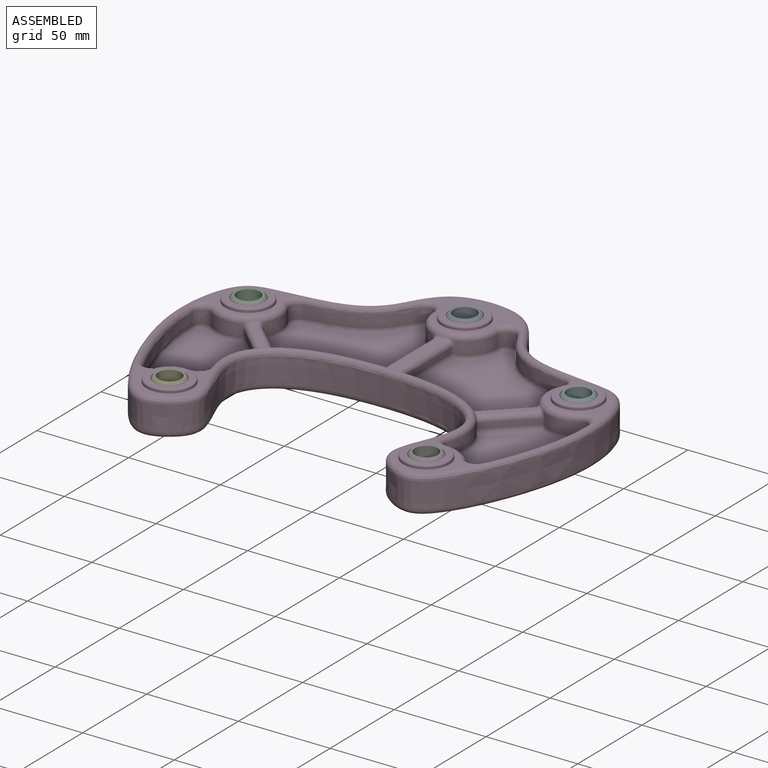
[diagram: assembled view]
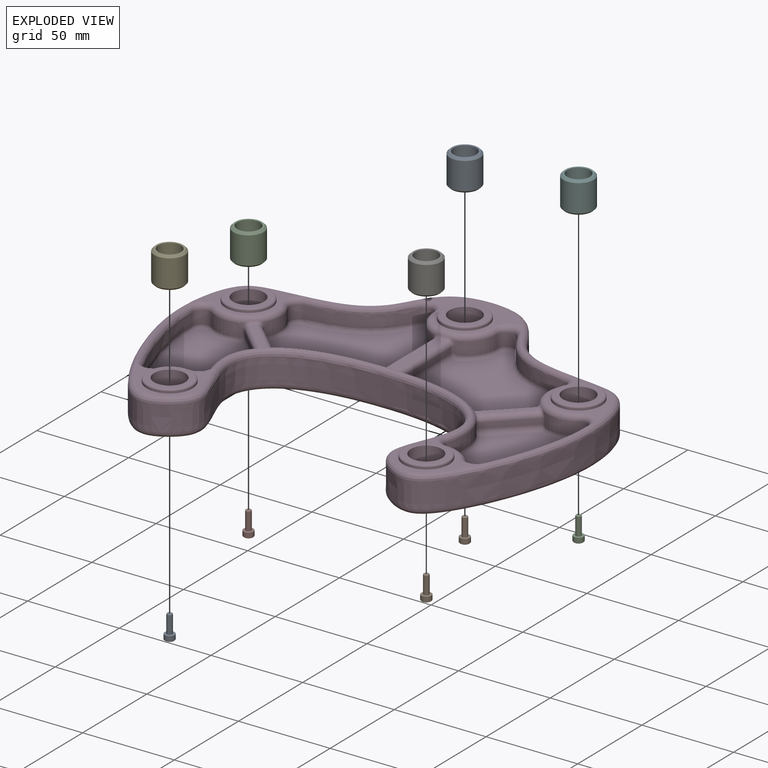
[diagram: exploded view]
GUIDED TOUR — MATED ASSEMBLY (Onshape document 522ba1e49c45aa98ccbdb8b2, AutoMate assembly 522ba1e49c45aa98ccbdb8b2_e6d9994796cce20349b356db_2e51bfdb84ef5d611ce40678_default)

This assembly has 11 components, labeled P0..P10 below (a component is one placed occurrence of a part; the same part can appear more than once), held together by 10 mates. A mate is a constraint between two components; its type names the relative motion it leaves free:
  FASTENED — locks the two components together rigidly (no relative motion).
Axis/direction vectors are unit vectors and 'through' points are millimeter coordinates, both in the assembly's world frame.

MATES
  1. FASTENED "Fastened 8": P1 <-> P3, direction (0.000, 0.000, 1.000) through (100.57, 125.55, -129.96) mm
  2. FASTENED "Fastened 3": P0 <-> P3, direction (0.000, 0.000, -1.000) through (100.57, 125.55, -127.96) mm
  3. FASTENED "Fastened 9": P2 <-> P3, direction (0.000, 0.000, 1.000) through (190.57, 85.55, -129.96) mm
  4. FASTENED "Fastened 4": P5 <-> P3, direction (0.000, 0.000, -1.000) through (190.57, 85.55, -127.96) mm
  5. FASTENED "Fastened 5": P6 <-> P3, direction (0.000, 0.000, -1.000) through (170.57, -4.45, -127.96) mm
  6. FASTENED "Fastened 2": P10 <-> P3, direction (0.000, 0.000, -1.000) through (10.57, 85.55, -127.96) mm
  7. FASTENED "Fastened 1": P4 <-> P3, direction (0.000, 0.000, -1.000) through (30.57, -4.45, -127.96) mm
  8. FASTENED "Fastened 7": P7 <-> P3, direction (0.000, 0.000, 1.000) through (10.57, 85.55, -129.96) mm
  9. FASTENED "Fastened 6": P8 <-> P3, direction (0.000, 0.000, 1.000) through (30.57, -4.45, -129.96) mm
  10. FASTENED "Fastened 10": P9 <-> P3, direction (0.000, 0.000, 1.000) through (170.57, -4.45, -129.96) mm

ASSEMBLY ORDER
  1. P3 — the base component [order verified]
  2. P4 [order verified]
  3. P8 [order verified]
  4. P6 [order verified]
  5. P9 [order verified]
  6. P0 [order verified]
  7. P1 [order verified]
  8. P10 [order verified]
  9. P7 [order verified]
  10. P5 [order verified]
  11. P2 [order verified]
(P8 verified with a relaxed clearance tolerance: the source model stores slight part interference there.)
Order-tag legend:
  [order verified] — this step's position reverses a verified removal order: the component was checked to insert without passing through the ones already placed.

Of the 11 components, 5 carry the full construction recipe — the FeatureScript program that regenerates the part's solid from scratch; the rest are supplied as boundary geometry only.
Each toured component is shown spotlighted twice — in the assembled view, then in the exploded view, where a leader line traces a displaced component back to its assembled socket (saturated green if recipe-attached, orange if geometry-only; every other component desaturated gray) — followed by its recipe or geometry summary and the mates that hold it.
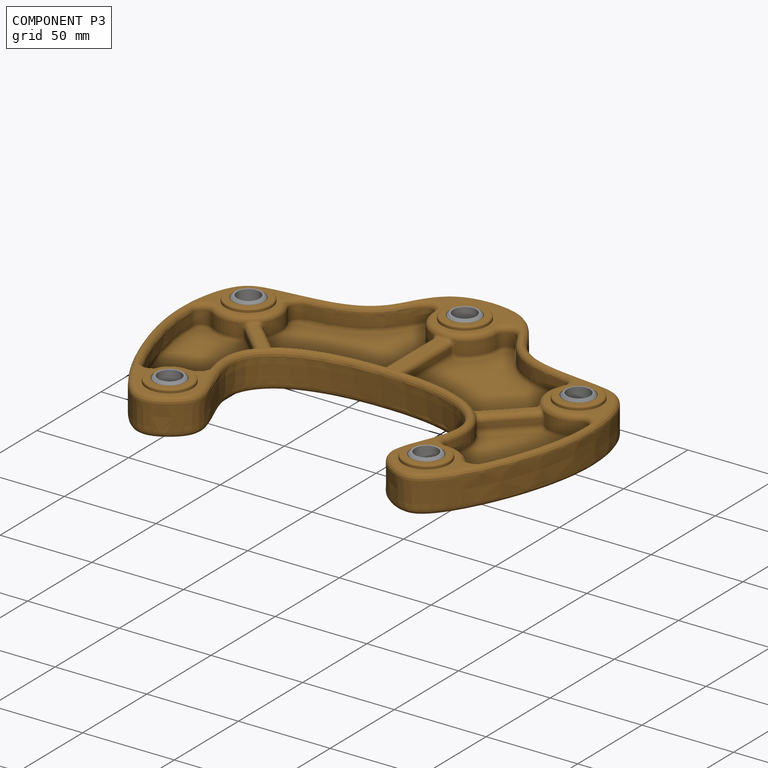
[diagram: component P3 — assembled]
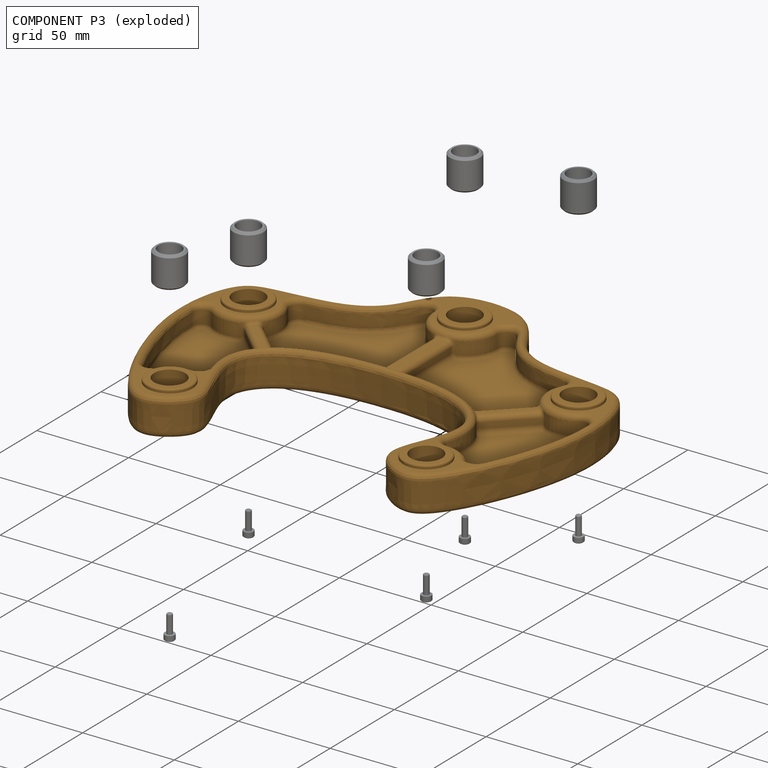
[diagram: component P3 — exploded]
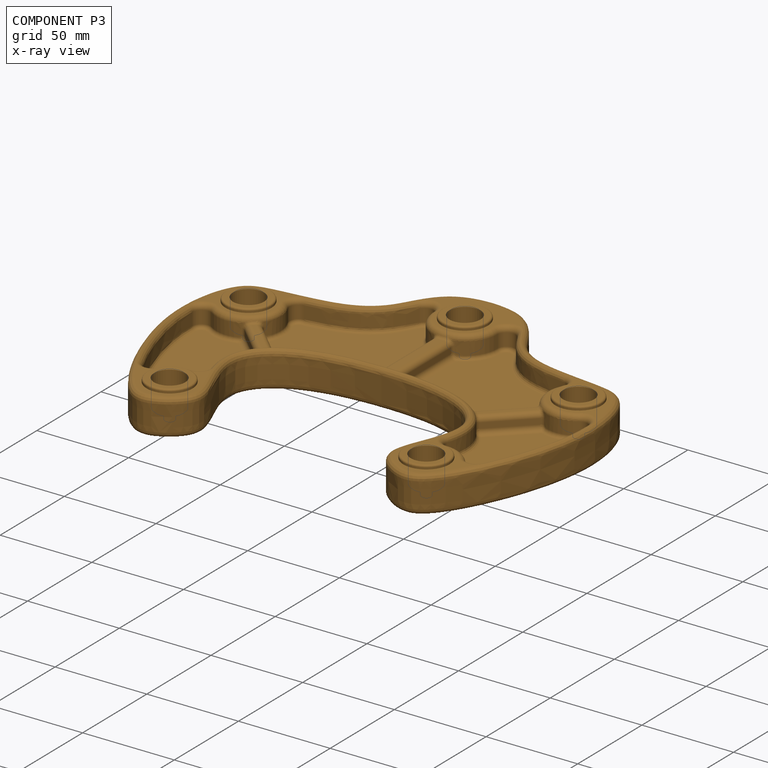
[diagram: component P3 — x-ray view]
COMPONENT P3 — geometry summary (no construction recipe available for this part):
  bounding box: 227.4 x 172.0 x 22.0 mm
  B-rep topology: 1 solid, 202 faces, 900 edges
  volume: 254619 mm^3 (30% of its bounding box)
  symmetry: mirror-symmetric across its x mid-plane
Held by: FASTENED mate "Fastened 8" to P1; FASTENED mate "Fastened 3" to P0; FASTENED mate "Fastened 9" to P2; FASTENED mate "Fastened 4" to P5; FASTENED mate "Fastened 5" to P6; FASTENED mate "Fastened 2" to P10; FASTENED mate "Fastened 1" to P4; FASTENED mate "Fastened 7" to P7; FASTENED mate "Fastened 6" to P8; FASTENED mate "Fastened 10" to P9.
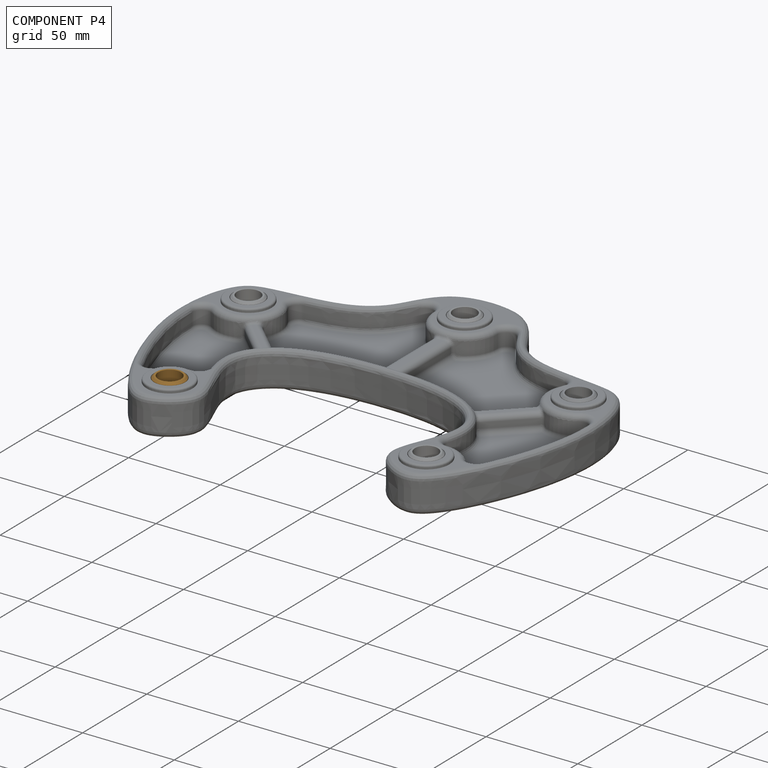
[diagram: component P4 — assembled]
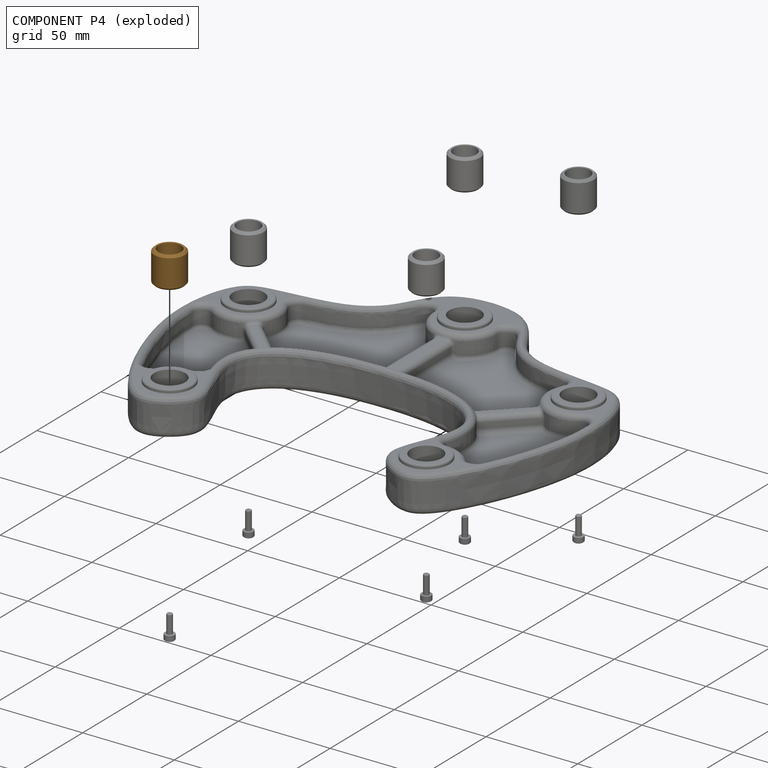
[diagram: component P4 — exploded]
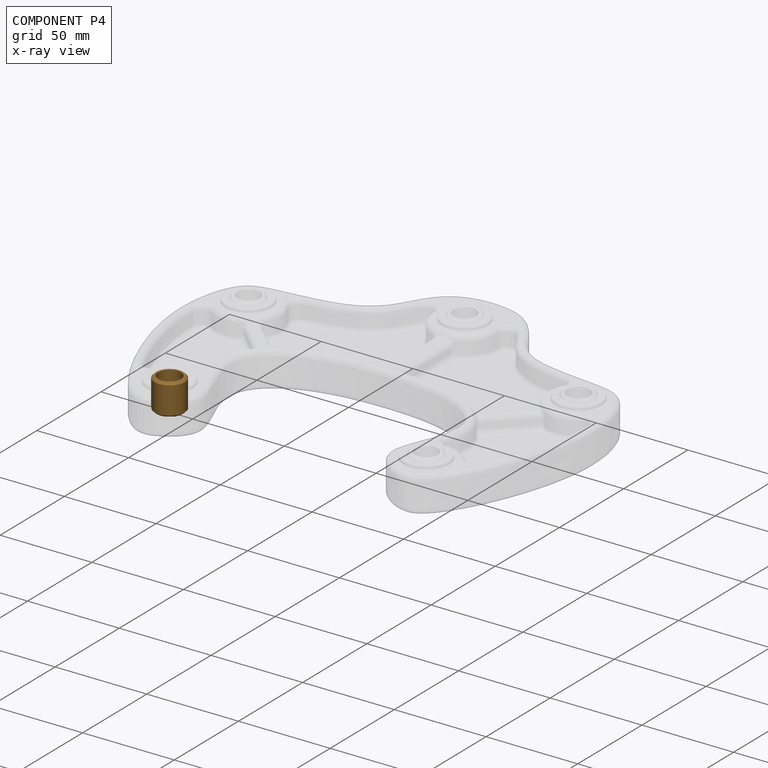
[diagram: component P4 — x-ray view]
COMPONENT P4 — geometry summary (no construction recipe available for this part):
  bounding box: 17.0 x 16.5 x 16.5 mm
  B-rep topology: 1 solid, 16 faces, 68 edges
  volume: 2118 mm^3 (46% of its bounding box)
  symmetry: 6-fold rotationally symmetric about the z axis; mirror-symmetric across its x mid-plane, y mid-plane
Held by: FASTENED mate "Fastened 1" to P3.
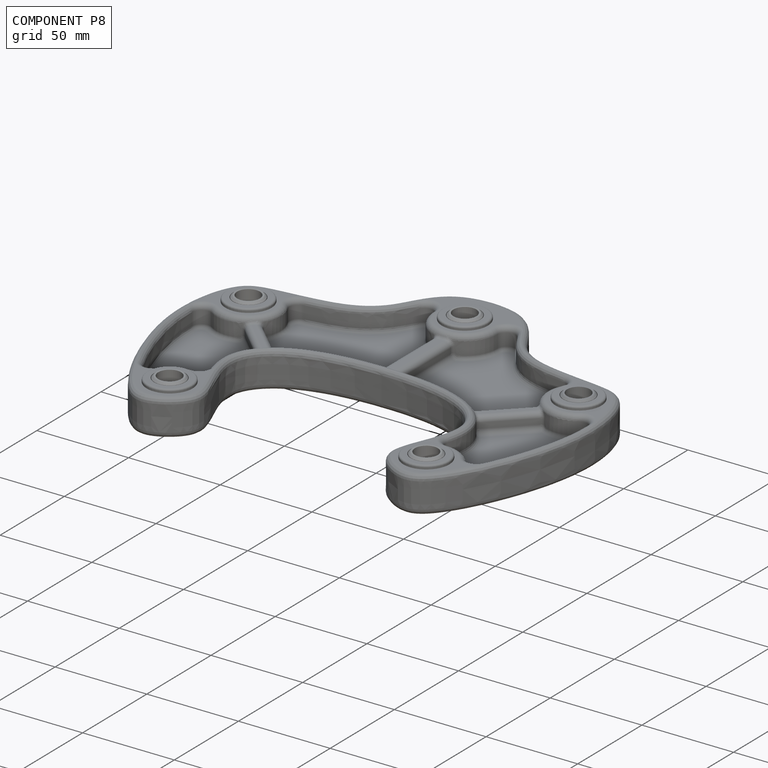
[diagram: component P8 — assembled]
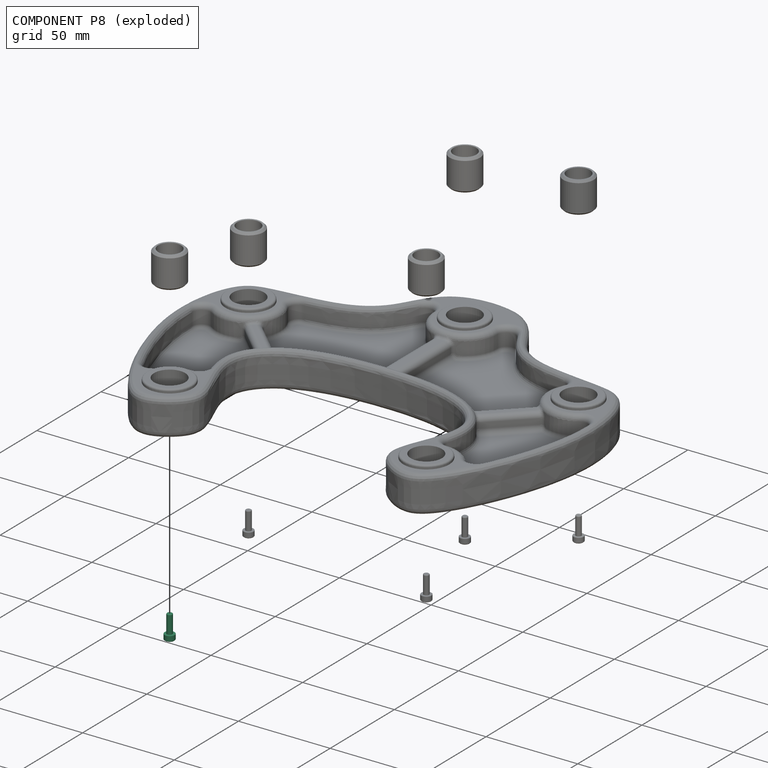
[diagram: component P8 — exploded]
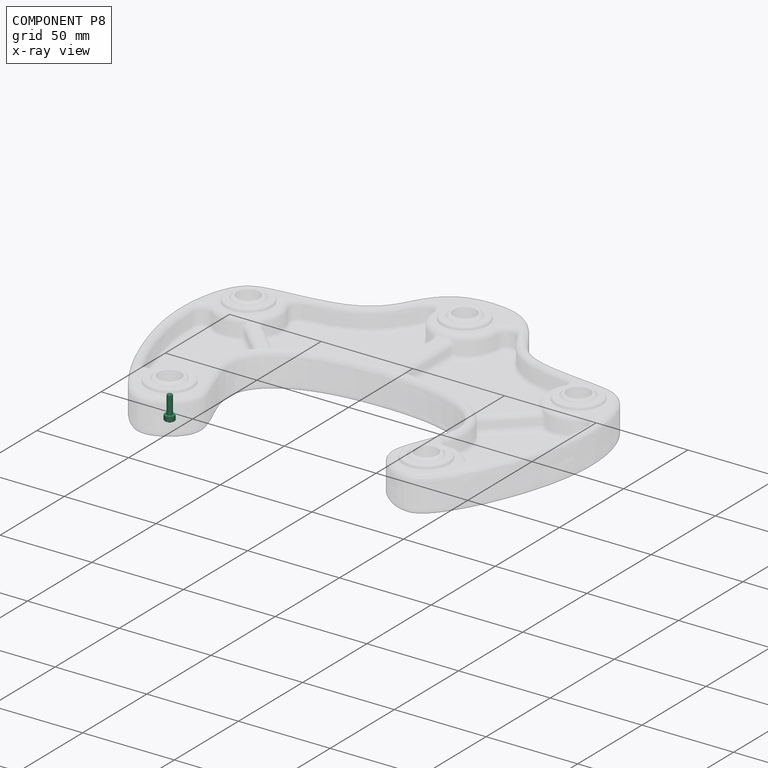
[diagram: component P8 — x-ray view]
COMPONENT P8 — same part as P1 (CADFS 00477910); its construction recipe is shown at P1.
Held by: FASTENED mate "Fastened 6" to P3.
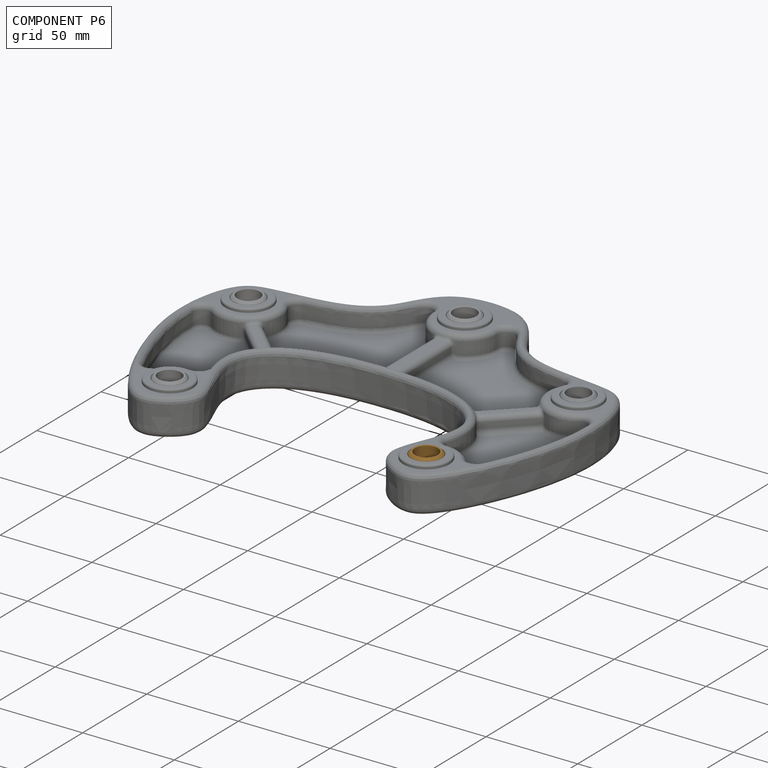
[diagram: component P6 — assembled]
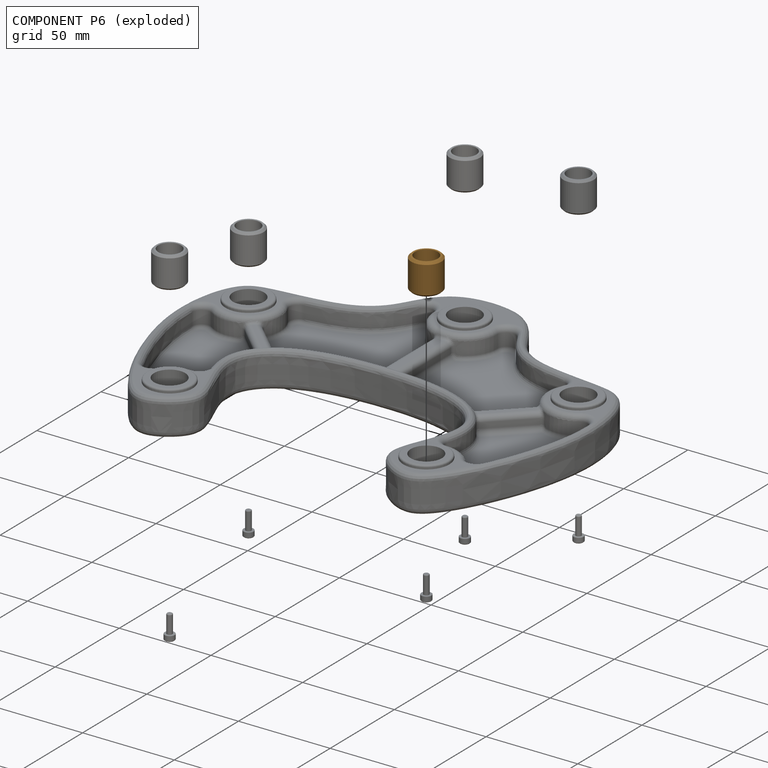
[diagram: component P6 — exploded]
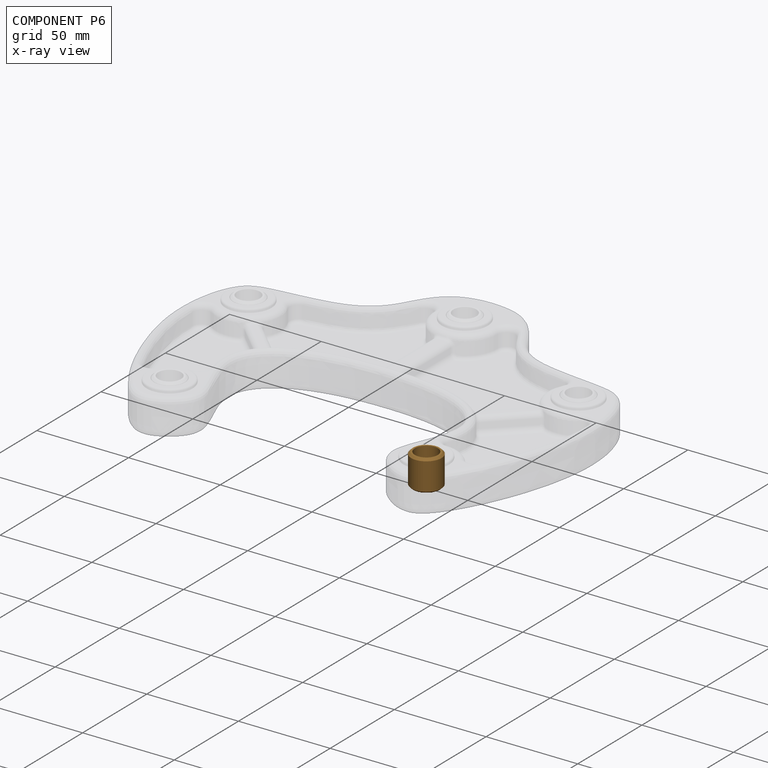
[diagram: component P6 — x-ray view]
COMPONENT P6 — geometry summary (no construction recipe available for this part):
  bounding box: 17.0 x 16.5 x 16.5 mm
  B-rep topology: 1 solid, 16 faces, 68 edges
  volume: 2118 mm^3 (46% of its bounding box)
  symmetry: 6-fold rotationally symmetric about the z axis; mirror-symmetric across its x mid-plane, y mid-plane
Held by: FASTENED mate "Fastened 5" to P3.
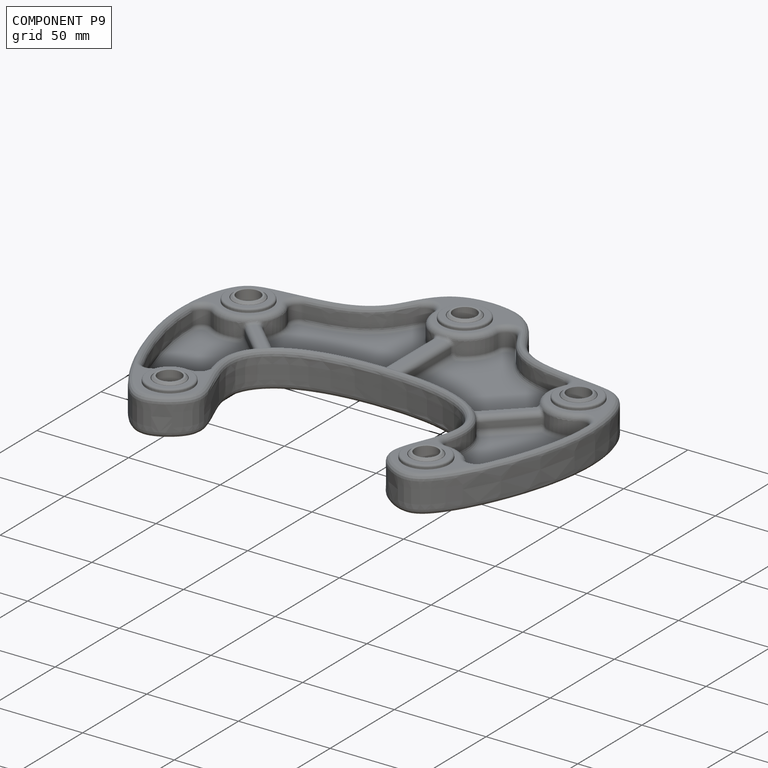
[diagram: component P9 — assembled]
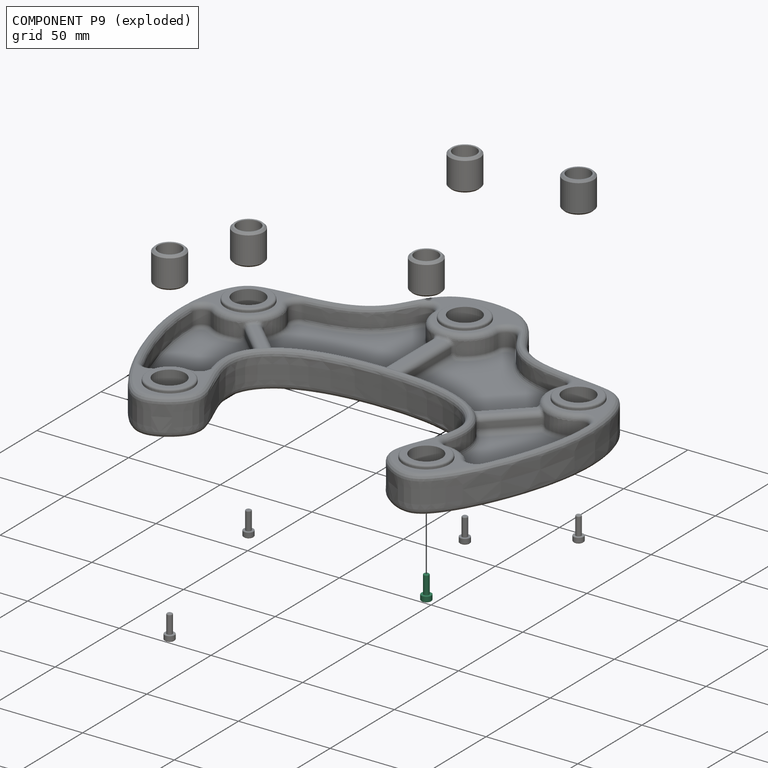
[diagram: component P9 — exploded]
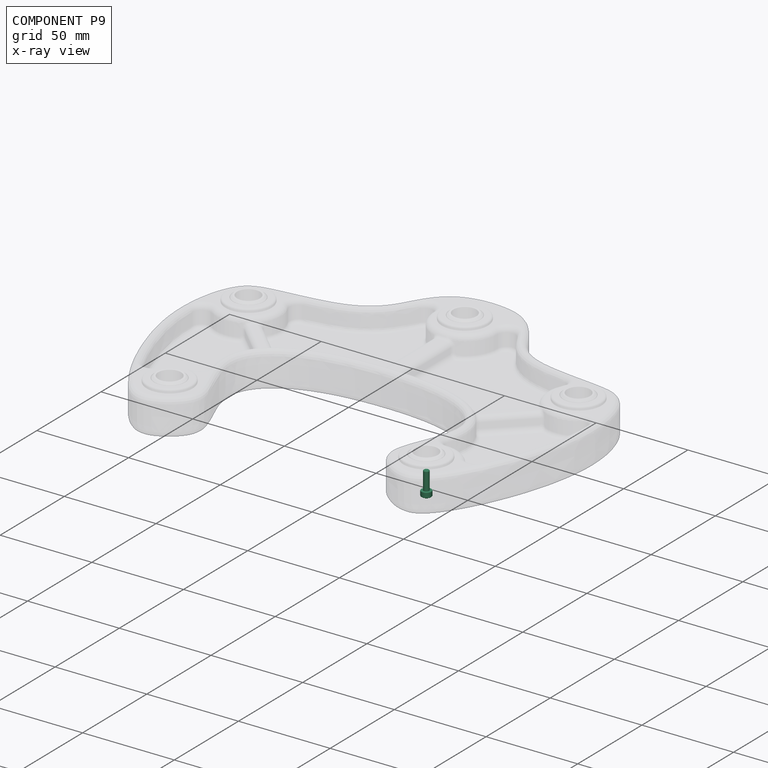
[diagram: component P9 — x-ray view]
COMPONENT P9 — same part as P1 (CADFS 00477910); its construction recipe is shown at P1.
Held by: FASTENED mate "Fastened 10" to P3.
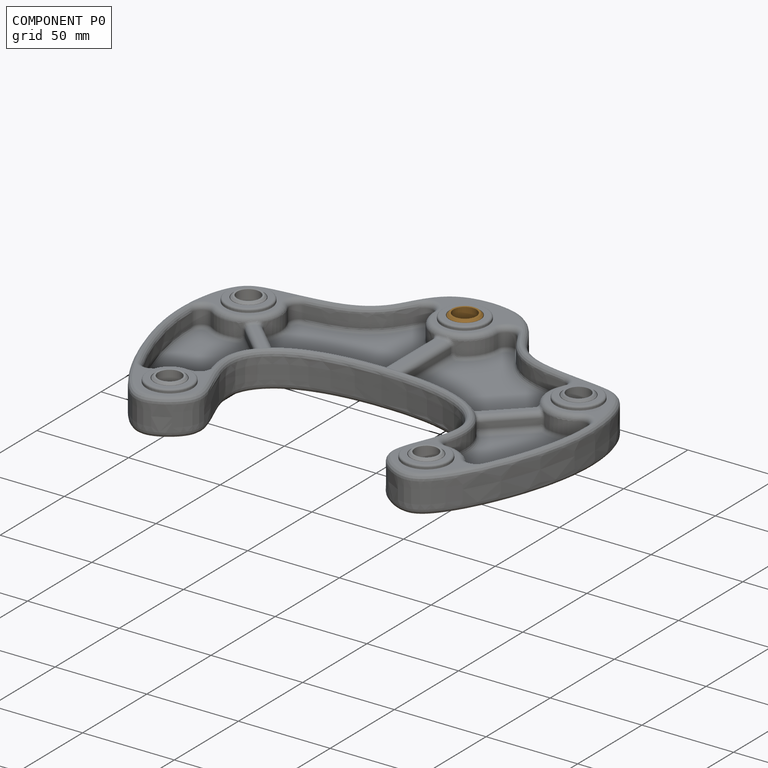
[diagram: component P0 — assembled]
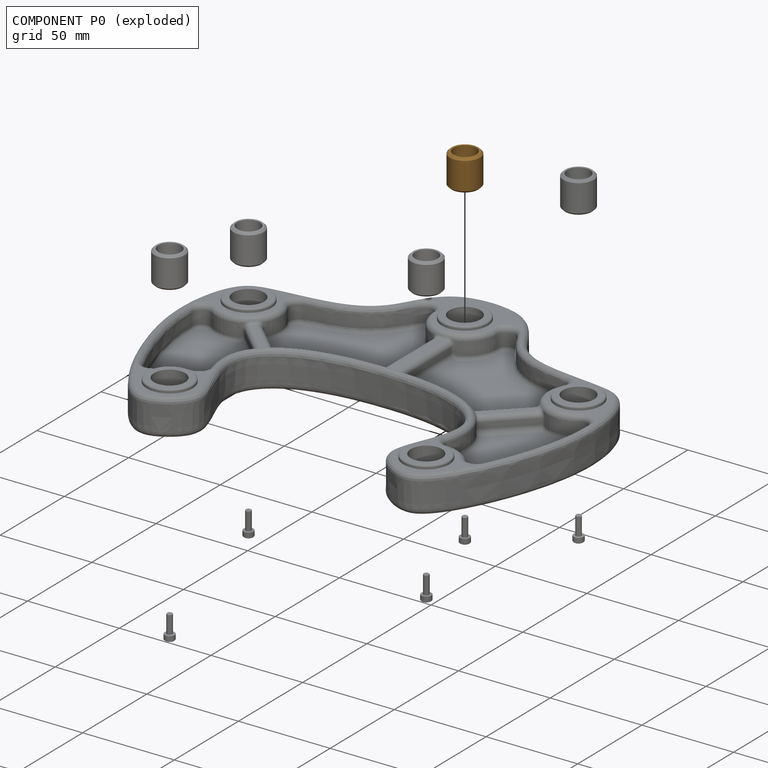
[diagram: component P0 — exploded]
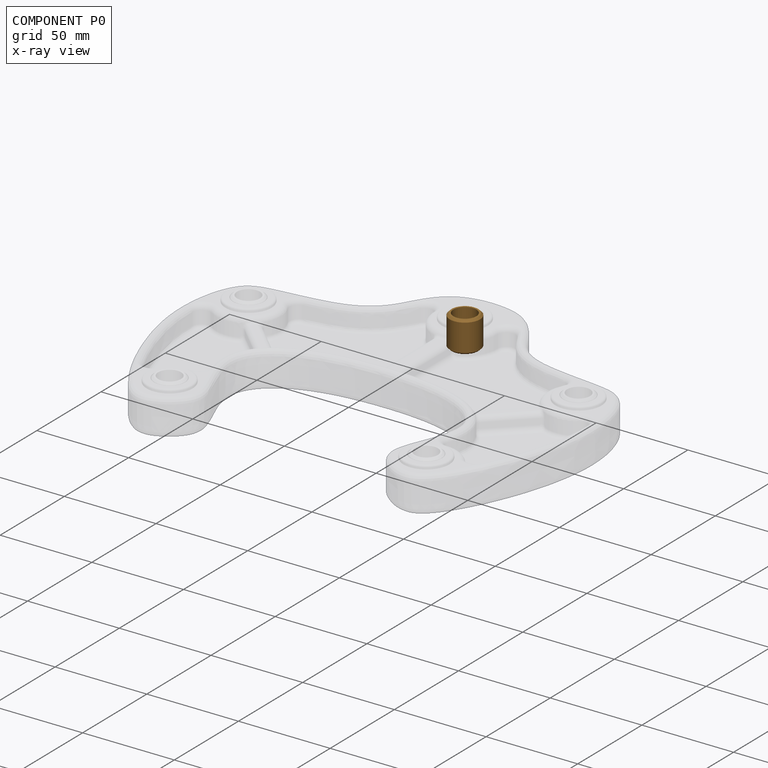
[diagram: component P0 — x-ray view]
COMPONENT P0 — geometry summary (no construction recipe available for this part):
  bounding box: 17.0 x 16.5 x 16.5 mm
  B-rep topology: 1 solid, 16 faces, 68 edges
  volume: 2118 mm^3 (46% of its bounding box)
  symmetry: 6-fold rotationally symmetric about the z axis; mirror-symmetric across its x mid-plane, y mid-plane
Held by: FASTENED mate "Fastened 3" to P3.
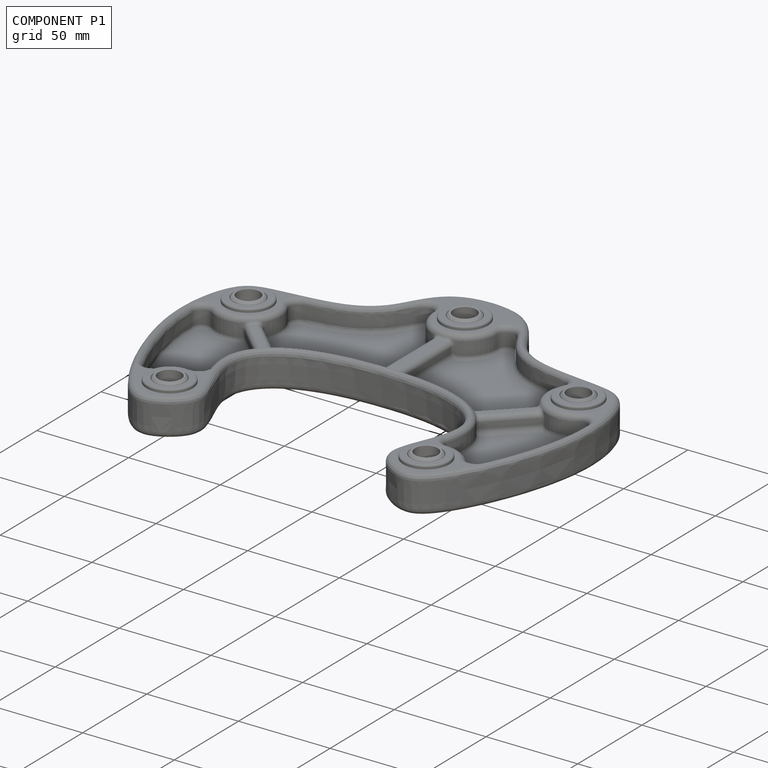
[diagram: component P1 — assembled]
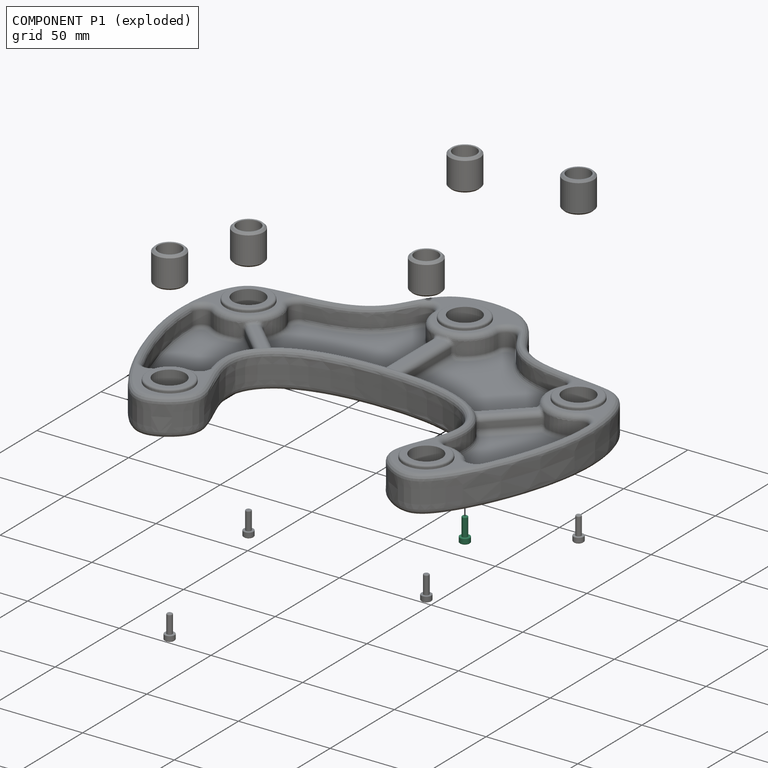
[diagram: component P1 — exploded]
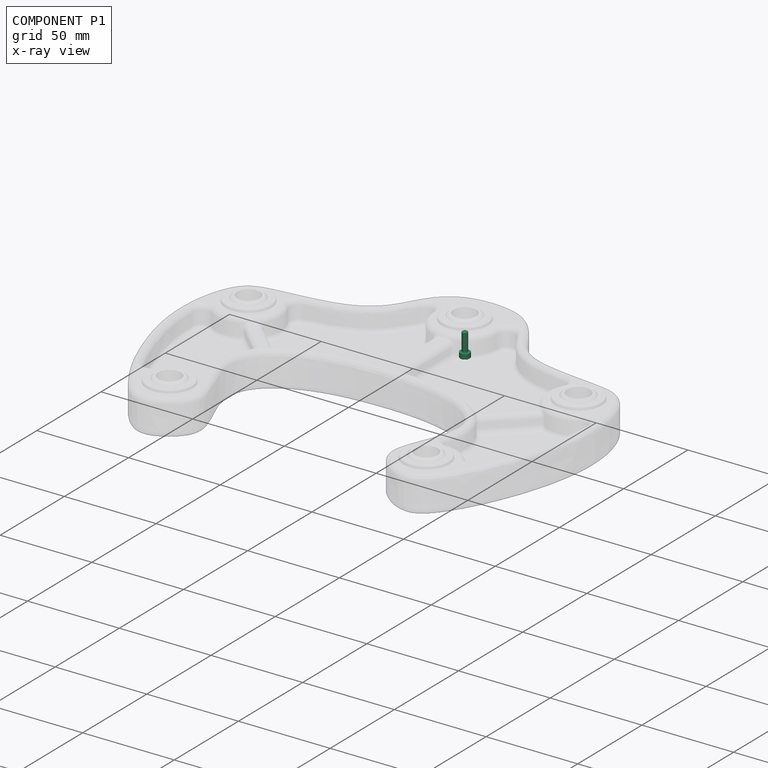
[diagram: component P1 — x-ray view]
COMPONENT P1 — recipe-attached (CADFS 00477910, mesh-verified: the recipe's output STEP matches this component's geometry to below the mesh-comparison resolution (tessellation chordal tolerance ~0.0227 mm)).
Held by: FASTENED mate "Fastened 8" to P3.
Construction recipe (FeatureScript — the CAD program that rebuilds this solid; sketch coordinates are in the units given by the * unit suffixes, e.g. mm):

FeatureScript 1511;
import(path : "onshape/std/geometry.fs", version : "1511.0");
import(path : "onshape/std/common.fs", version : "1511.0");
const mm = millimeter;
const VERTEX = EntityType.VERTEX;
const EDGE = EntityType.EDGE;
const FACE = EntityType.FACE;
const BODY = EntityType.BODY;
function v(x, y){return vector(x, y);}
function OD(order){return orderDisambiguation(order);}
function OSD(set){return originalSetDisambiguation(set);}
function TD(topology){return topologyDisambiguation(topology);}
function TDD(query){return trueDependencyDisambiguation(query);}
function sQuery(a, b, c) {return sketchEntityQuery(a, b, c);}

annotation { "Feature Type Name" : "Feature", "Feature Type Description" : "" }
export const myFeature = defineFeature(function(context is Context, id is Id, definition is map)
    precondition{}
    {
        {
            var Q0;
            Q0=qCreatedBy(makeId("Front.planeOp"),FACE);
            var sketch = newSketch(context, id + "F0", { "sketchPlane" : qUnion([Q0])});
            skLineSegment(sketch, "E0", {"start": v(0, 0) * mm, "end": v(0, -13.37) * mm, "construction": true});
            skLineSegment(sketch, "E1", {"start": v(0, 0) * mm, "end": v(2.75, 0) * mm});
            skLineSegment(sketch, "E2", {"start": v(2.75, 0) * mm, "end": v(2.75, -3) * mm});
            skLineSegment(sketch, "E3", {"start": v(2.75, -3) * mm, "end": v(1.5, -3) * mm});
            skLineSegment(sketch, "E4", {"start": v(1.5, -3) * mm, "end": v(1.5, -13) * mm});
            skLineSegment(sketch, "E5", {"start": v(1.5, -13) * mm, "end": v(0, -13) * mm});
            skLineSegment(sketch, "E6", {"start": v(0, -13) * mm, "end": v(0, 0) * mm});
            skSolve(sketch);
        }
        {
            var Q0;
            Q0=qSketchRegion(id+"F0",true);
            var Q1;
            Q1=sQuery(id+"F0.wireOp",EDGE,"E6");
            revolve(context, id + "F1", {"entities" : qUnion([Q0]), "axis" : qUnion([Q1]), "revolveType" : RevolveType.FULL});
        }
        {
            var Q0;
            Q0=makeQuery(id+"F1.opRevolve","SWEPT_FACE",FACE,{"disambiguationData":[OSD([sQuery(id+"F0.wireOp",EDGE,"E1")])]});
            var sketch = newSketch(context, id + "F2", { "sketchPlane" : qUnion([Q0])});
            skCircle(sketch, "E7.cCircle", {"center": v(0, 0) * mm, "radius": 1.25 * mm, "construction": true});
            skLineSegment(sketch, "E7.0", {"start": v(-0.72, 1.25) * mm, "end": v(0.72, 1.25) * mm});
            skLineSegment(sketch, "E7.1", {"start": v(0.72, 1.25) * mm, "end": v(1.44, 0) * mm});
            skLineSegment(sketch, "E7.2", {"start": v(1.44, 0) * mm, "end": v(0.72, -1.25) * mm});
            skLineSegment(sketch, "E7.3", {"start": v(0.72, -1.25) * mm, "end": v(-0.72, -1.25) * mm});
            skLineSegment(sketch, "E7.4", {"start": v(-0.72, -1.25) * mm, "end": v(-1.44, 0) * mm});
            skLineSegment(sketch, "E7.5", {"start": v(-1.44, 0) * mm, "end": v(-0.72, 1.25) * mm});
            skPoint(sketch, "E7.0.midPoint", {"position": v(0, 1.25) * mm});
            skSolve(sketch);
        }
        {
            var Q0;
            Q0=makeQuery(id+"F2.imprint","IMPRINT",FACE,{"disambiguationData":[TD([[makeQuery(id+"F2.imprint","IMPRINT",EDGE,{"derivedFrom":sQuery(id+"F2.wireOp",EDGE,"E7.0")}),-1.0]])]});
            extrude(context, id + "F3", {"entities" : qUnion([Q0]), "operationType" : NewBodyOperationType.REMOVE, "oppositeDirection" : true, "depth" : 1.6 * mm});
        }
        {
            var Q0;
            Q0=makeQuery(id+"F3.boolean.opBoolean","COPY",FACE,{"derivedFrom":makeQuery(id+"F3.opExtrude","CAP_FACE",FACE,{"disambiguationData":[OSD([sQuery(id+"F2.wireOp",EDGE,"E7.0"),sQuery(id+"F2.wireOp",EDGE,"E7.1"),sQuery(id+"F2.wireOp",EDGE,"E7.2"),sQuery(id+"F2.wireOp",EDGE,"E7.3"),sQuery(id+"F2.wireOp",EDGE,"E7.4"),sQuery(id+"F2.wireOp",EDGE,"E7.5")])],"isStart":false})});
            chamfer(context, id + "F4", {"entities" : qUnion([Q0]), "chamferType" : ChamferType.OFFSET_ANGLE, "width" : .5 * mm, "oppositeDirection" : false, "angle" : 60 * degree, "tangentPropagation" : true});
        }
        {
            var Q0;
            Q0=makeQuery(id+"F1.opRevolve","SWEPT_EDGE",EDGE,{"disambiguationData":[OSD([sQuery(id+"F0.wireOp",EDGE,"E1"),sQuery(id+"F0.wireOp",EDGE,"E2")])]});
            var Q1;
            Q1=makeQuery(id+"F1.opRevolve","SWEPT_EDGE",EDGE,{"disambiguationData":[OSD([sQuery(id+"F0.wireOp",EDGE,"E4"),sQuery(id+"F0.wireOp",EDGE,"E5")])]});
            chamfer(context, id + "F5", {"entities" : qUnion([Q0, Q1]), "width" : .3 * mm, "tangentPropagation" : true});
        }
        {
            var Q0;
            Q0=makeQuery(id+"F1.opRevolve","SWEPT_EDGE",EDGE,{"disambiguationData":[OSD([sQuery(id+"F0.wireOp",EDGE,"E2"),sQuery(id+"F0.wireOp",EDGE,"E3")])]});
            fillet(context, id + "F6", {"entities" : qUnion([Q0]), "radius" : .1 * mm, "tangentPropagation" : true, "allowEdgeOverflow" : false});
        }
        {
            var Q0;
            Q0=makeQuery(id+"F1.opRevolve","SWEPT_BODY",BODY,{"disambiguationData":[OSD([sQuery(id+"F0.wireOp",EDGE,"E1"),sQuery(id+"F0.wireOp",EDGE,"E2"),sQuery(id+"F0.wireOp",EDGE,"E3"),sQuery(id+"F0.wireOp",EDGE,"E4"),sQuery(id+"F0.wireOp",EDGE,"E5"),sQuery(id+"F0.wireOp",EDGE,"E6")])]});
            transform(context, id + "F7", {"entities" : qUnion([Q0]), "transformType" : TransformType.COPY});
        }
        {
            var Q0;
            Q0=makeQuery(id+"F7.opPattern","COPY",BODY,{"derivedFrom":makeQuery(id+"F1.opRevolve","SWEPT_BODY",BODY,{"disambiguationData":[OSD([sQuery(id+"F0.wireOp",EDGE,"E1"),sQuery(id+"F0.wireOp",EDGE,"E2"),sQuery(id+"F0.wireOp",EDGE,"E3"),sQuery(id+"F0.wireOp",EDGE,"E4"),sQuery(id+"F0.wireOp",EDGE,"E5"),sQuery(id+"F0.wireOp",EDGE,"E6")])]}),"instanceName":"1"});
            deleteBodies(context, id + "F8", {"entities" : qUnion([Q0])});
        }
    });
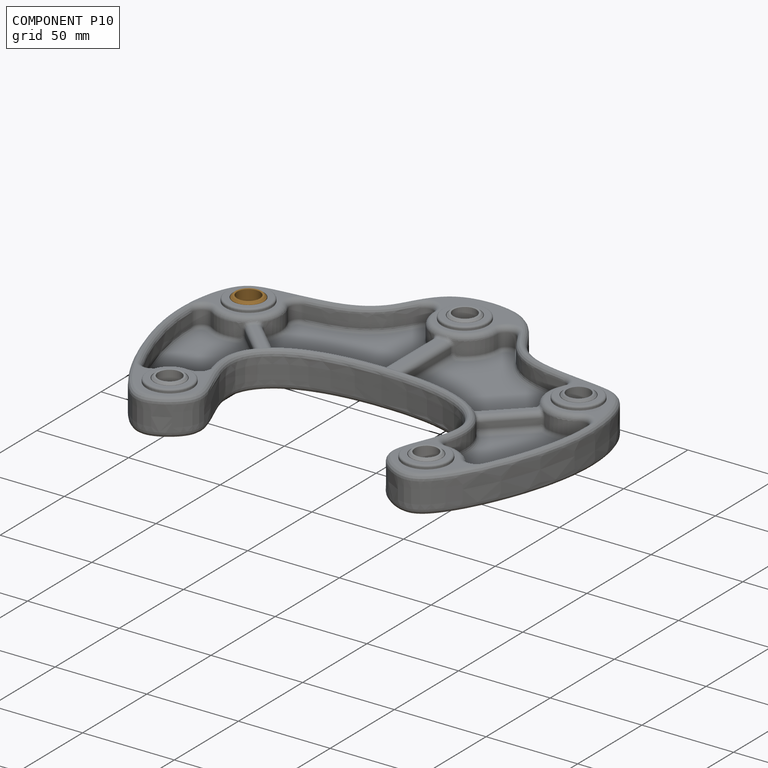
[diagram: component P10 — assembled]
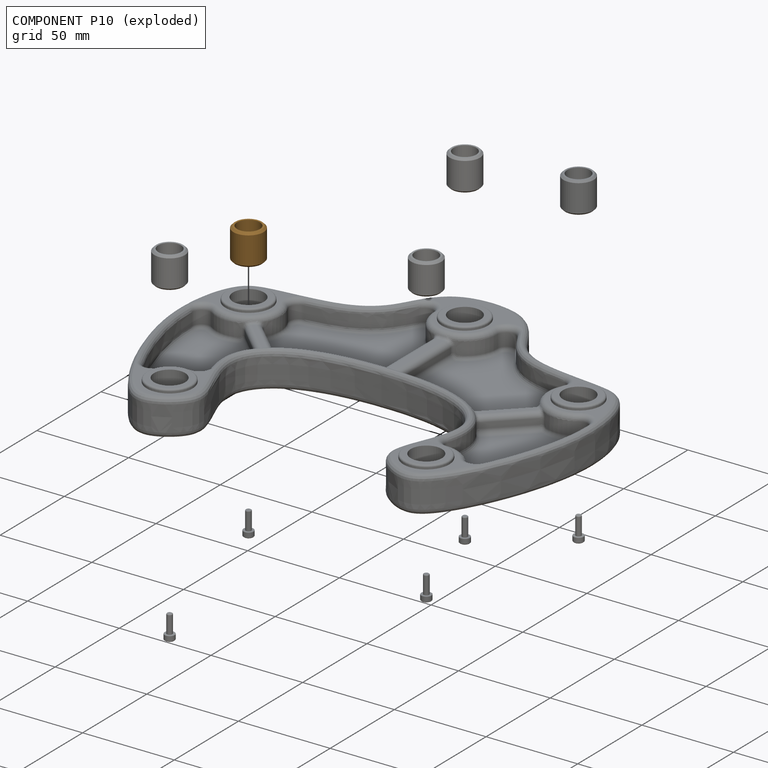
[diagram: component P10 — exploded]
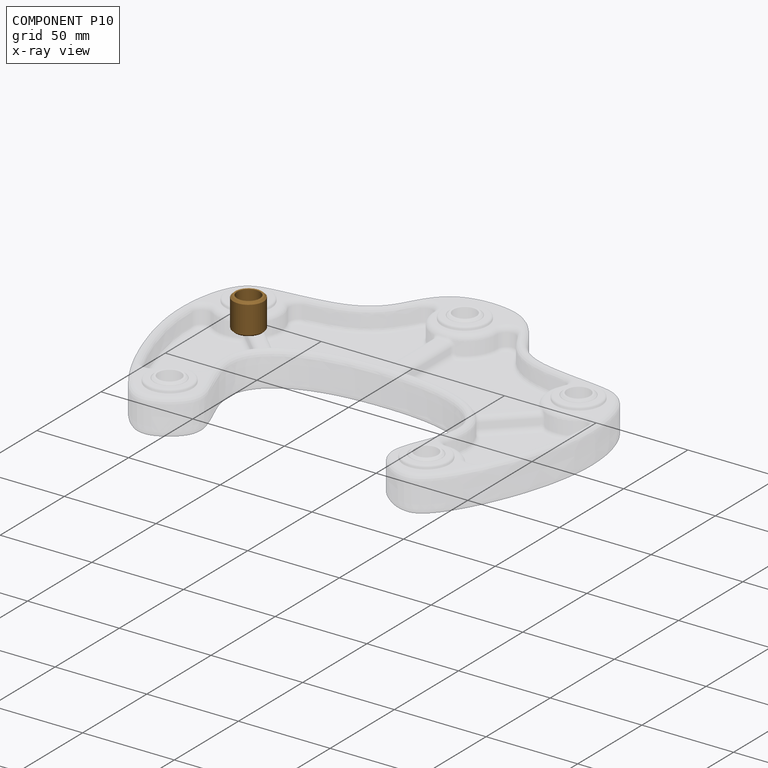
[diagram: component P10 — x-ray view]
COMPONENT P10 — geometry summary (no construction recipe available for this part):
  bounding box: 17.0 x 16.5 x 16.5 mm
  B-rep topology: 1 solid, 16 faces, 68 edges
  volume: 2118 mm^3 (46% of its bounding box)
  symmetry: 6-fold rotationally symmetric about the z axis; mirror-symmetric across its x mid-plane, y mid-plane
Held by: FASTENED mate "Fastened 2" to P3.
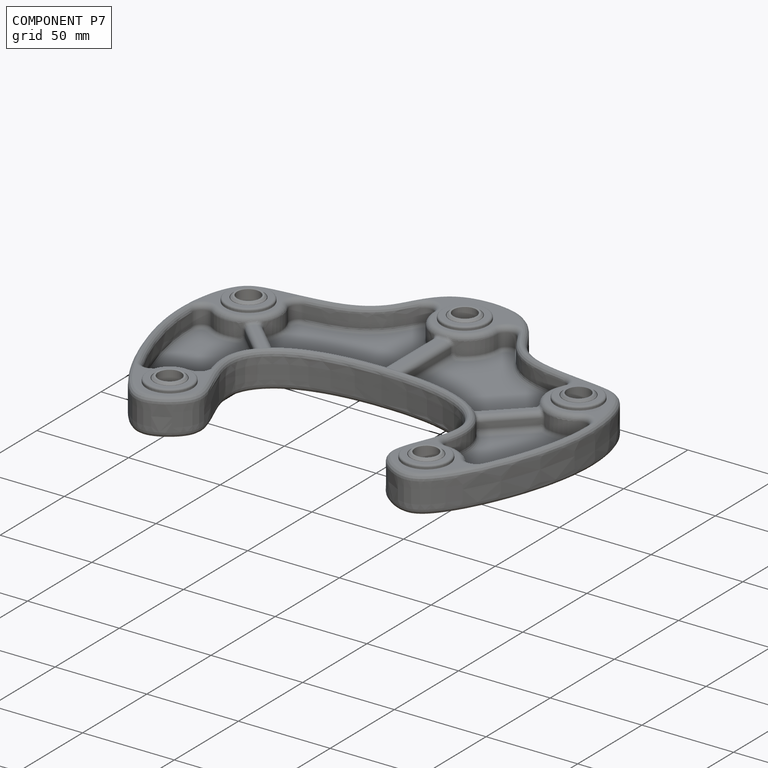
[diagram: component P7 — assembled]
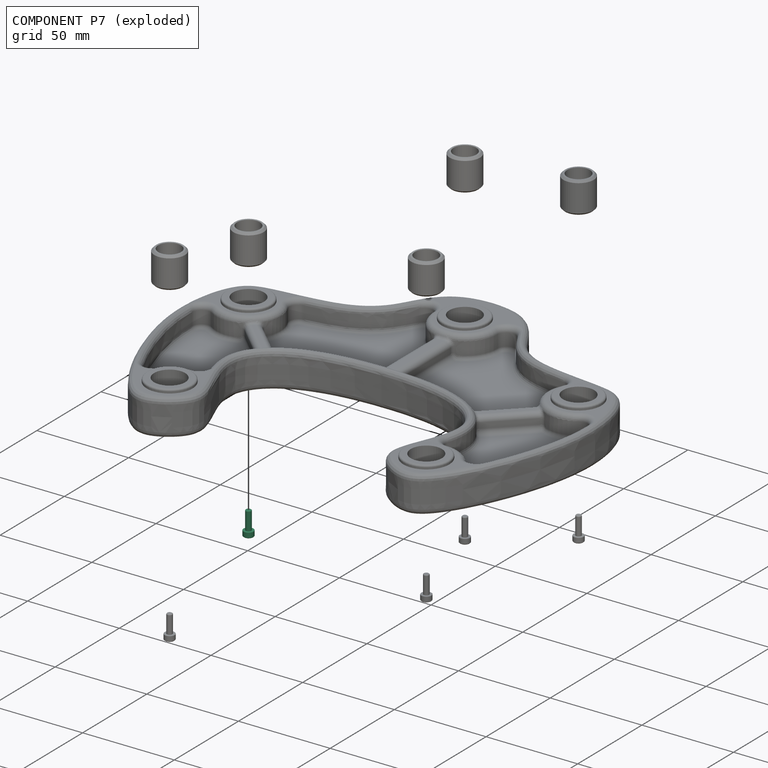
[diagram: component P7 — exploded]
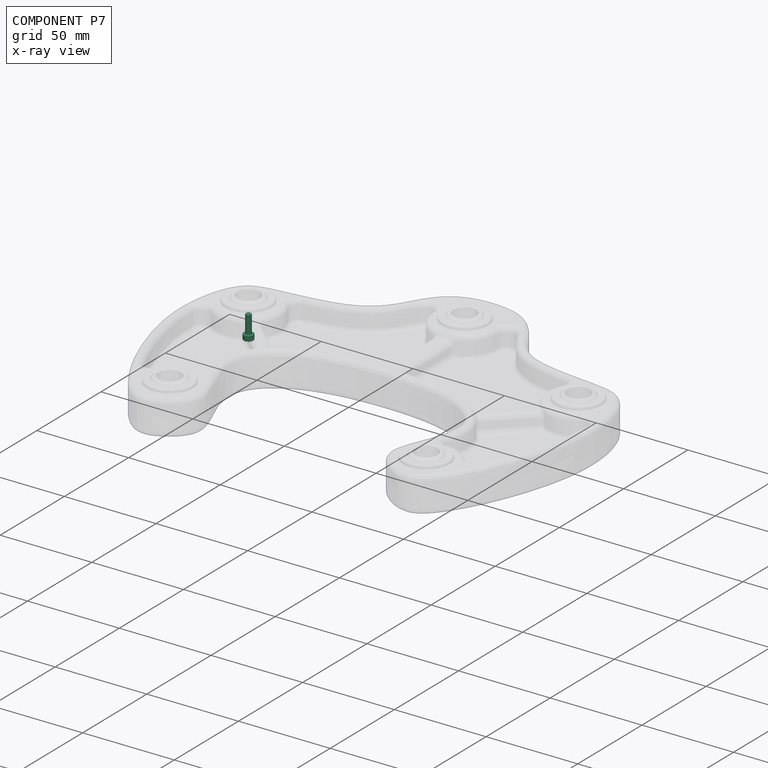
[diagram: component P7 — x-ray view]
COMPONENT P7 — same part as P1 (CADFS 00477910); its construction recipe is shown at P1.
Held by: FASTENED mate "Fastened 7" to P3.
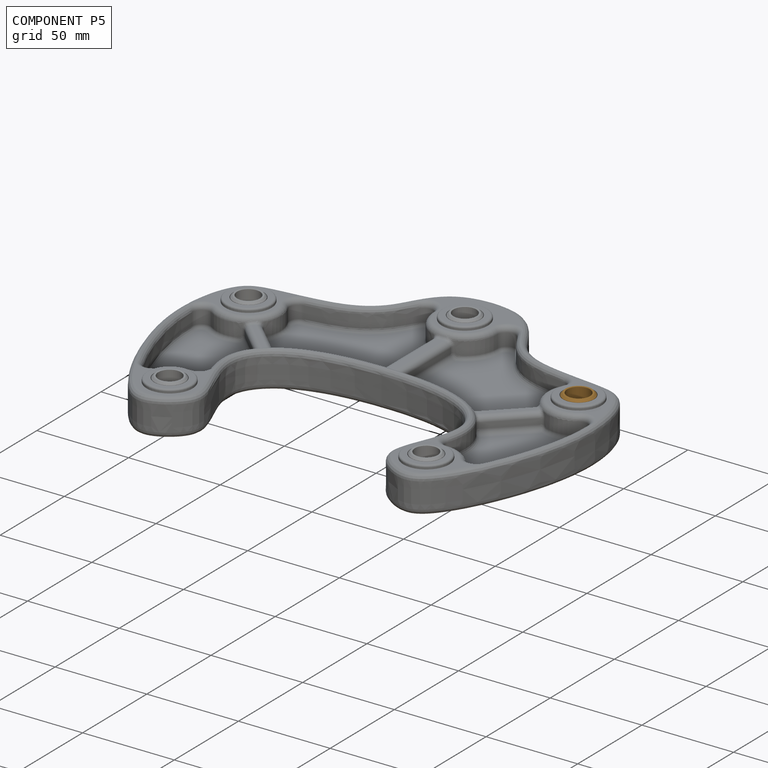
[diagram: component P5 — assembled]
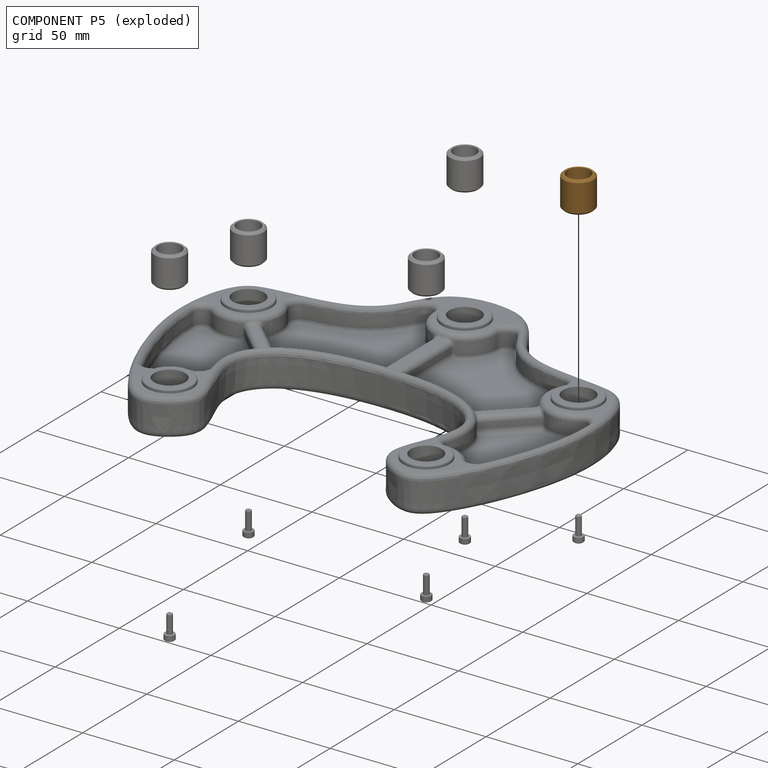
[diagram: component P5 — exploded]
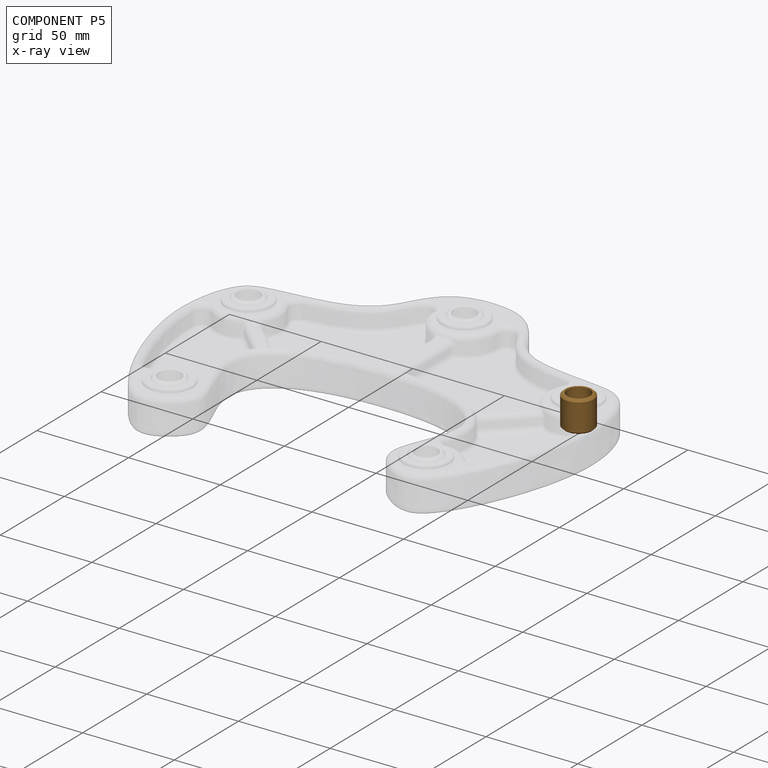
[diagram: component P5 — x-ray view]
COMPONENT P5 — geometry summary (no construction recipe available for this part):
  bounding box: 17.0 x 16.5 x 16.5 mm
  B-rep topology: 1 solid, 16 faces, 68 edges
  volume: 2118 mm^3 (46% of its bounding box)
  symmetry: 6-fold rotationally symmetric about the z axis; mirror-symmetric across its x mid-plane, y mid-plane
Held by: FASTENED mate "Fastened 4" to P3.
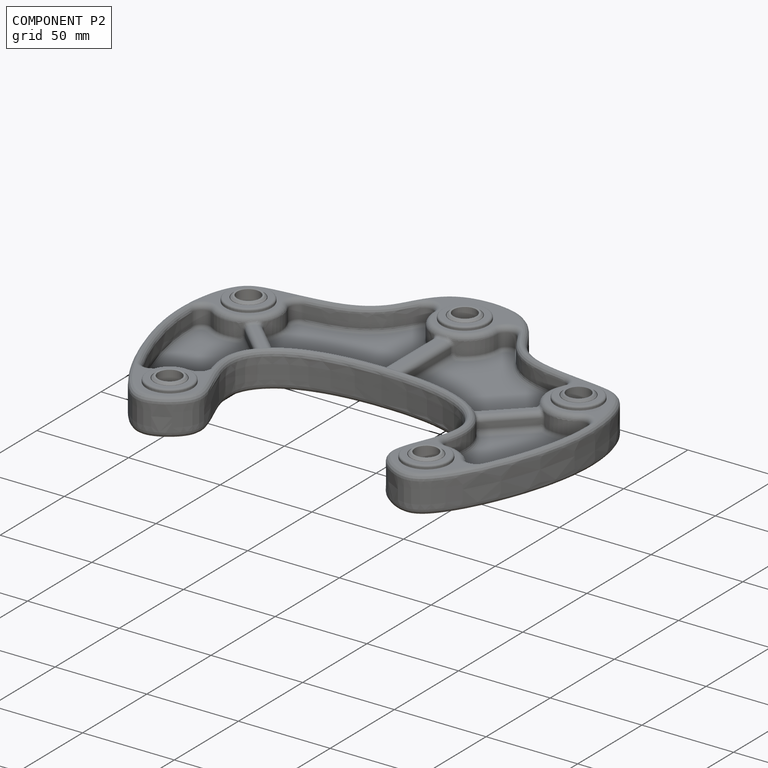
[diagram: component P2 — assembled]
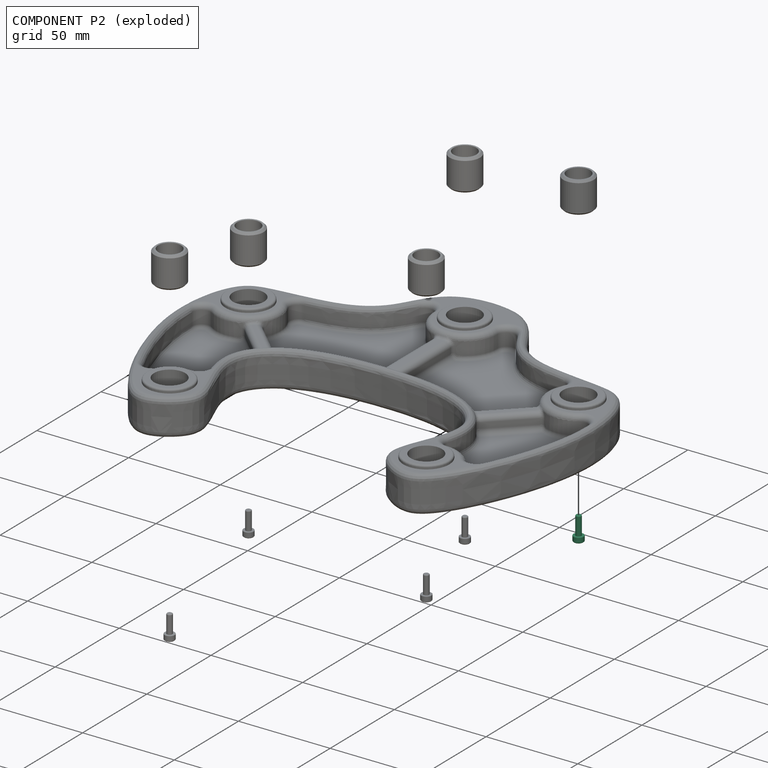
[diagram: component P2 — exploded]
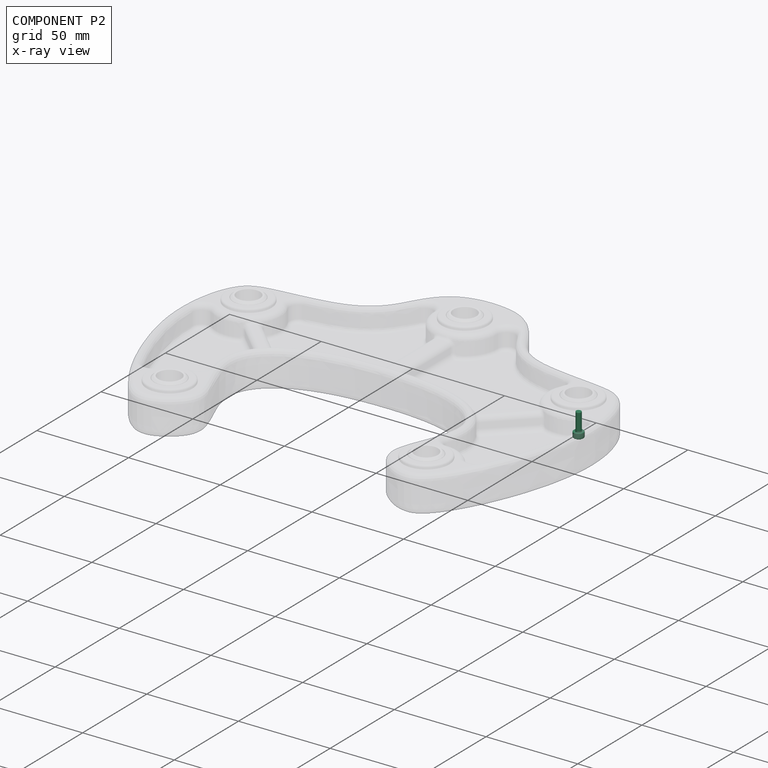
[diagram: component P2 — x-ray view]
COMPONENT P2 — same part as P1 (CADFS 00477910); its construction recipe is shown at P1.
Held by: FASTENED mate "Fastened 9" to P3.
PROVENANCE & LICENSES
Assembly (occurrences, transforms, mates, per-part STEP geometry): AutoMate dataset, Zenodo record 7776208, CC0.
Construction recipes: CADFS (HuggingFace VladPyatov/CADFS, CC-BY-4.0, layered over the ABC dataset), FeatureScript reconstruction programs keyed by ABC model id.
Join: ABC meta listings map ABC model id -> Onshape documentId; within a shared document, parts are matched by geometric signature (bounding-box dims + volume at 0.1% relative tolerance, exact B-rep face/solid counts).
Verification: 5 of this assembly's 11 components carry a recipe attachment, and every attachment is mesh-verified: the CADFS STEP and the AutoMate member STEP were compared as meshes in their shared local frame (symmetric sampled-point-to-mesh distance); worst across the 5 attachments: below the mesh-comparison resolution (tessellation chordal tolerance ~0.0227 mm) on a 15 mm part.
Renders: orthographic iso camera (az 35 / el 25); the floor grid conveys scale (grid pitch printed in each image; no ruler). In the exploded view each component is displaced by its stored offset vector: the offsets alone carry the explosion direction (mate normal/axis signs are not orientation cues and do not encode it), and separation distances are assigned per mate-chain, not proportionally to assembly-order depth.
